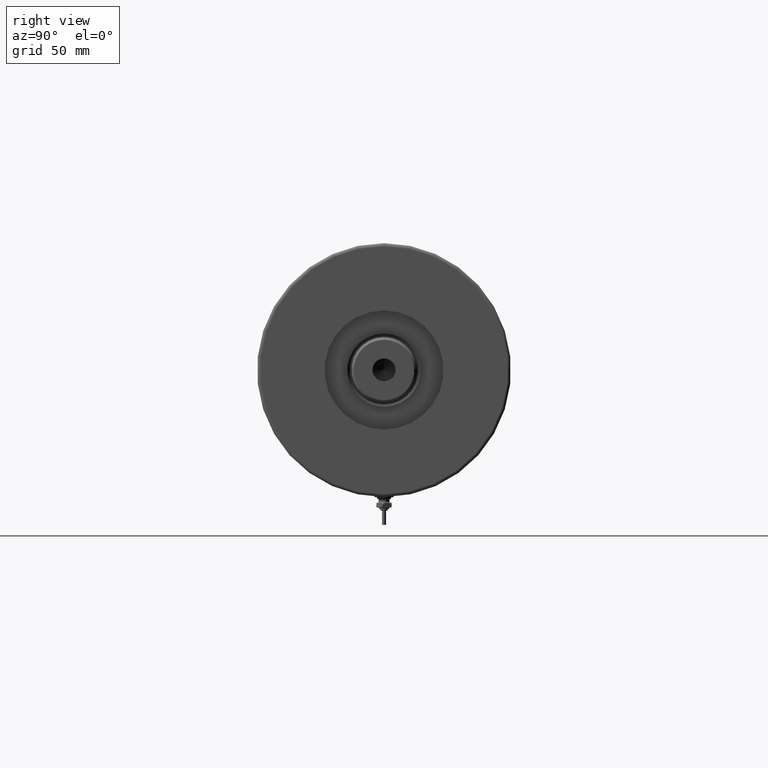
[diagram: clean part render]
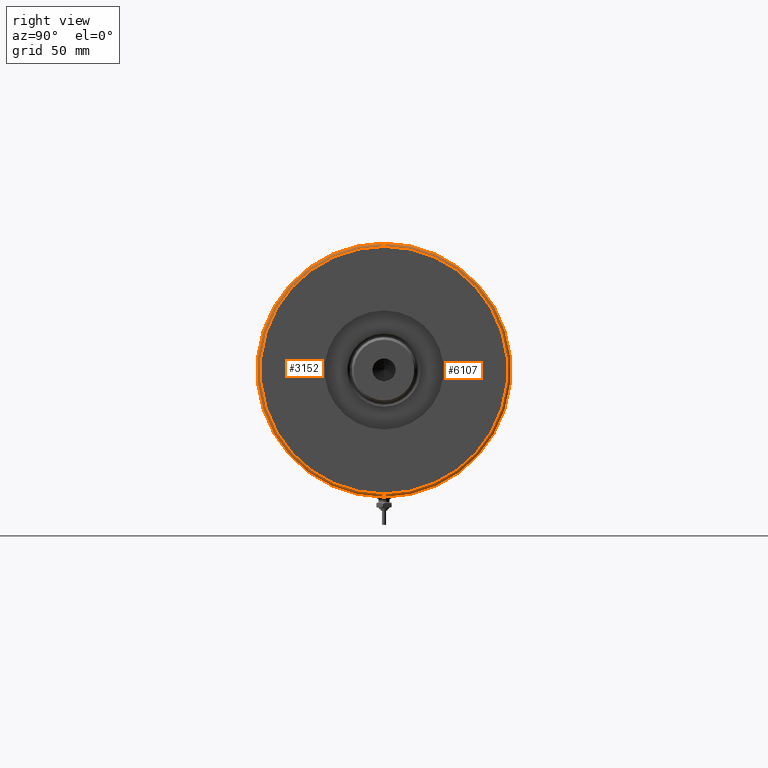
[diagram: same view with one multi-face feature highlighted, each face labeled with its STEP entity id]
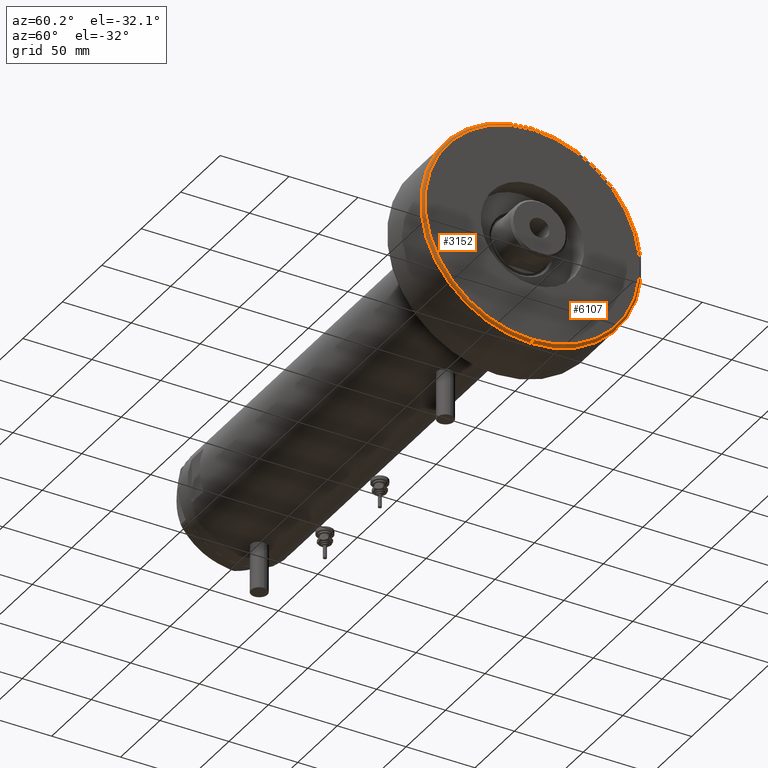
[diagram: same view with one multi-face feature highlighted, each face labeled with its STEP entity id]
A machine part, right view. The highlighted faces form ONE feature: a constant-radius fillet chain: 2 tangent blend faces with common blend radius 2 mm. The faces share edges in the B-rep.
A second angle (auxiliary view) of the same feature is appended — it is thin or edge-on in the first view.
Their STEP definitions:
[1] entity #3152 (Torus):
#106 = CARTESIAN_POINT ( 'NONE',  ( -80.00000000000000000, 0.000000000000000000, 44.00000000000000000 ) ) ;
#230 = EDGE_CURVE ( 'NONE', #1358, #2445, #3823, .T. ) ;
#236 = AXIS2_PLACEMENT_3D ( 'NONE', #1447, #5910, #470 ) ;
#292 = EDGE_CURVE ( 'NONE', #4763, #2445, #750, .T. ) ;
#400 = VERTEX_POINT ( 'NONE', #106 ) ;
#463 = ORIENTED_EDGE ( 'NONE', *, *, #292, .T. ) ;
#470 = DIRECTION ( 'NONE',  ( 1.000000000000000000, 0.000000000000000000, 0.000000000000000000 ) ) ;
#732 = ORIENTED_EDGE ( 'NONE', *, *, #2622, .F. ) ;
#750 = CIRCLE ( 'NONE', #5706, 2.000000000000001776 ) ;
#790 = DIRECTION ( 'NONE',  ( 0.000000000000000000, -1.000000000000000000, 0.000000000000000000 ) ) ;
#1047 = DIRECTION ( 'NONE',  ( 0.000000000000000000, 0.000000000000000000, 1.000000000000000000 ) ) ;
#1057 = AXIS2_PLACEMENT_3D ( 'NONE', #5278, #4238, #1843 ) ;
#1066 = CIRCLE ( 'NONE', #236, 80.00000000000000000 ) ;
#1142 = DIRECTION ( 'NONE',  ( 1.000000000000000000, 0.000000000000000000, 0.000000000000000000 ) ) ;
#1198 = CARTESIAN_POINT ( 'NONE',  ( 78.00000000000000000, 0.000000000000000000, 46.00000000000000000 ) ) ;
#1326 = CARTESIAN_POINT ( 'NONE',  ( 80.00000000000000000, 9.797174393178826052E-15, 44.00000000000000000 ) ) ;
#1358 = VERTEX_POINT ( 'NONE', #3166 ) ;
#1447 = CARTESIAN_POINT ( 'NONE',  ( 0.000000000000000000, 0.000000000000000000, 44.00000000000000000 ) ) ;
#1843 = DIRECTION ( 'NONE',  ( 1.000000000000000000, 0.000000000000000000, 0.000000000000000000 ) ) ;
#1894 = AXIS2_PLACEMENT_3D ( 'NONE', #6090, #1047, #1142 ) ;
#2358 = DIRECTION ( 'NONE',  ( 0.000000000000000000, 0.000000000000000000, -1.000000000000000000 ) ) ;
#2445 = VERTEX_POINT ( 'NONE', #1198 ) ;
#2622 = EDGE_CURVE ( 'NONE', #4763, #400, #1066, .T. ) ;
#2770 = DIRECTION ( 'NONE',  ( 1.224646799147353207E-16, 1.000000000000000000, -0.000000000000000000 ) ) ;
#3061 = ORIENTED_EDGE ( 'NONE', *, *, #4516, .F. ) ;
#3068 = EDGE_LOOP ( 'NONE', ( #3061, #732, #463, #4824 ) ) ;
#3152 = ADVANCED_FACE ( 'NONE', ( #3578 ), #4473, .T. ) ;
#3166 = CARTESIAN_POINT ( 'NONE',  ( -78.00000000000000000, 9.674709713264090904E-15, 46.00000000000000000 ) ) ;
#3578 = FACE_OUTER_BOUND ( 'NONE', #3068, .T. ) ;
#3777 = DIRECTION ( 'NONE',  ( -1.000000000000000000, 1.224646799147349509E-16, 0.000000000000000000 ) ) ;
#3823 = CIRCLE ( 'NONE', #1057, 78.00000000000000000 ) ;
#4238 = DIRECTION ( 'NONE',  ( 0.000000000000000000, 0.000000000000000000, 1.000000000000000000 ) ) ;
#4333 = CARTESIAN_POINT ( 'NONE',  ( -78.00000000000000000, 9.552245033349355756E-15, 44.00000000000000000 ) ) ;
#4382 = AXIS2_PLACEMENT_3D ( 'NONE', #4333, #2770, #3777 ) ;
#4473 = TOROIDAL_SURFACE ( 'NONE', #1894, 78.00000000000000000, 2.000000000000000000 ) ;
#4516 = EDGE_CURVE ( 'NONE', #400, #1358, #5422, .T. ) ;
#4763 = VERTEX_POINT ( 'NONE', #1326 ) ;
#4824 = ORIENTED_EDGE ( 'NONE', *, *, #230, .F. ) ;
#5278 = CARTESIAN_POINT ( 'NONE',  ( 0.000000000000000000, 0.000000000000000000, 46.00000000000000000 ) ) ;
#5422 = CIRCLE ( 'NONE', #4382, 2.000000000000001776 ) ;
#5706 = AXIS2_PLACEMENT_3D ( 'NONE', #5794, #790, #2358 ) ;
#5794 = CARTESIAN_POINT ( 'NONE',  ( 78.00000000000000000, 0.000000000000000000, 44.00000000000000000 ) ) ;
#5910 = DIRECTION ( 'NONE',  ( -0.000000000000000000, -0.000000000000000000, -1.000000000000000000 ) ) ;
#6090 = CARTESIAN_POINT ( 'NONE',  ( 0.000000000000000000, 0.000000000000000000, 44.00000000000000000 ) ) ;
[2] entity #6107 (Torus):
#34 = CIRCLE ( 'NONE', #5601, 80.00000000000000000 ) ;
#86 = ORIENTED_EDGE ( 'NONE', *, *, #292, .F. ) ;
#106 = CARTESIAN_POINT ( 'NONE',  ( -80.00000000000000000, 0.000000000000000000, 44.00000000000000000 ) ) ;
#163 = EDGE_LOOP ( 'NONE', ( #813, #4605, #3045, #86 ) ) ;
#292 = EDGE_CURVE ( 'NONE', #4763, #2445, #750, .T. ) ;
#400 = VERTEX_POINT ( 'NONE', #106 ) ;
#750 = CIRCLE ( 'NONE', #5706, 2.000000000000001776 ) ;
#790 = DIRECTION ( 'NONE',  ( 0.000000000000000000, -1.000000000000000000, 0.000000000000000000 ) ) ;
#813 = ORIENTED_EDGE ( 'NONE', *, *, #2187, .F. ) ;
#933 = CARTESIAN_POINT ( 'NONE',  ( 0.000000000000000000, 0.000000000000000000, 44.00000000000000000 ) ) ;
#1198 = CARTESIAN_POINT ( 'NONE',  ( 78.00000000000000000, 0.000000000000000000, 46.00000000000000000 ) ) ;
#1326 = CARTESIAN_POINT ( 'NONE',  ( 80.00000000000000000, 9.797174393178826052E-15, 44.00000000000000000 ) ) ;
#1358 = VERTEX_POINT ( 'NONE', #3166 ) ;
#1626 = CARTESIAN_POINT ( 'NONE',  ( 0.000000000000000000, 0.000000000000000000, 46.00000000000000000 ) ) ;
#2187 = EDGE_CURVE ( 'NONE', #400, #4763, #34, .T. ) ;
#2358 = DIRECTION ( 'NONE',  ( 0.000000000000000000, 0.000000000000000000, -1.000000000000000000 ) ) ;
#2445 = VERTEX_POINT ( 'NONE', #1198 ) ;
#2770 = DIRECTION ( 'NONE',  ( 1.224646799147353207E-16, 1.000000000000000000, -0.000000000000000000 ) ) ;
#2858 = AXIS2_PLACEMENT_3D ( 'NONE', #6309, #3287, #3834 ) ;
#3045 = ORIENTED_EDGE ( 'NONE', *, *, #3239, .F. ) ;
#3166 = CARTESIAN_POINT ( 'NONE',  ( -78.00000000000000000, 9.674709713264090904E-15, 46.00000000000000000 ) ) ;
#3239 = EDGE_CURVE ( 'NONE', #2445, #1358, #4691, .T. ) ;
#3287 = DIRECTION ( 'NONE',  ( 0.000000000000000000, 0.000000000000000000, 1.000000000000000000 ) ) ;
#3593 = TOROIDAL_SURFACE ( 'NONE', #2858, 78.00000000000000000, 2.000000000000000000 ) ;
#3777 = DIRECTION ( 'NONE',  ( -1.000000000000000000, 1.224646799147349509E-16, 0.000000000000000000 ) ) ;
#3834 = DIRECTION ( 'NONE',  ( 1.000000000000000000, 0.000000000000000000, 0.000000000000000000 ) ) ;
#4000 = DIRECTION ( 'NONE',  ( 0.000000000000000000, 0.000000000000000000, 1.000000000000000000 ) ) ;
#4333 = CARTESIAN_POINT ( 'NONE',  ( -78.00000000000000000, 9.552245033349355756E-15, 44.00000000000000000 ) ) ;
#4382 = AXIS2_PLACEMENT_3D ( 'NONE', #4333, #2770, #3777 ) ;
#4499 = DIRECTION ( 'NONE',  ( 1.000000000000000000, 0.000000000000000000, 0.000000000000000000 ) ) ;
#4516 = EDGE_CURVE ( 'NONE', #400, #1358, #5422, .T. ) ;
#4605 = ORIENTED_EDGE ( 'NONE', *, *, #4516, .T. ) ;
#4691 = CIRCLE ( 'NONE', #5723, 78.00000000000000000 ) ;
#4763 = VERTEX_POINT ( 'NONE', #1326 ) ;
#4871 = DIRECTION ( 'NONE',  ( 1.000000000000000000, 0.000000000000000000, 0.000000000000000000 ) ) ;
#5422 = CIRCLE ( 'NONE', #4382, 2.000000000000001776 ) ;
#5601 = AXIS2_PLACEMENT_3D ( 'NONE', #933, #5809, #4871 ) ;
#5706 = AXIS2_PLACEMENT_3D ( 'NONE', #5794, #790, #2358 ) ;
#5723 = AXIS2_PLACEMENT_3D ( 'NONE', #1626, #4000, #4499 ) ;
#5794 = CARTESIAN_POINT ( 'NONE',  ( 78.00000000000000000, 0.000000000000000000, 44.00000000000000000 ) ) ;
#5809 = DIRECTION ( 'NONE',  ( -0.000000000000000000, -0.000000000000000000, -1.000000000000000000 ) ) ;
#6107 = ADVANCED_FACE ( 'NONE', ( #6278 ), #3593, .T. ) ;
#6278 = FACE_OUTER_BOUND ( 'NONE', #163, .T. ) ;
#6309 = CARTESIAN_POINT ( 'NONE',  ( 0.000000000000000000, 0.000000000000000000, 44.00000000000000000 ) ) ;